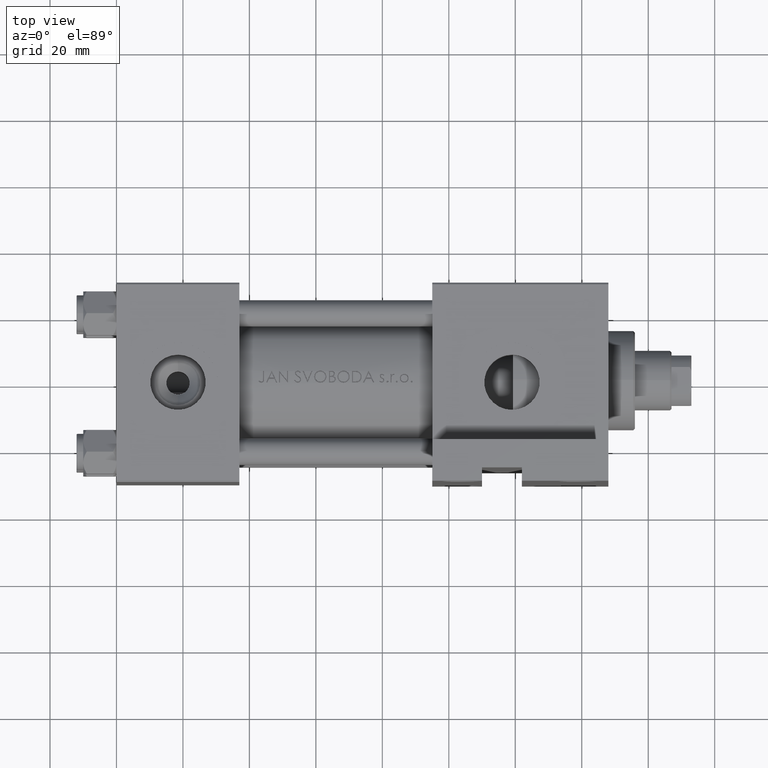
[diagram: clean part render]
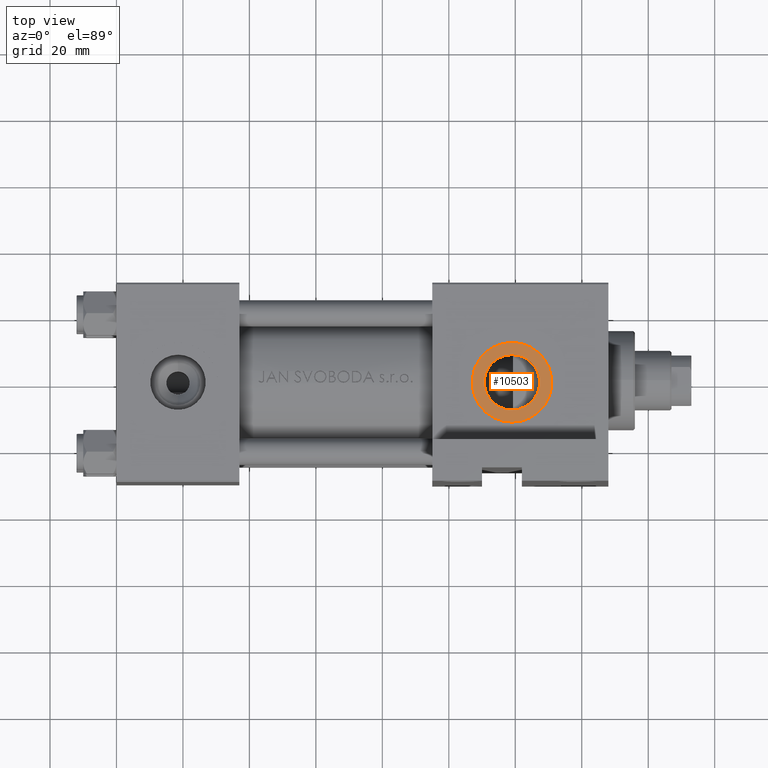
[diagram: same view with one face highlighted and labeled with its STEP entity id]
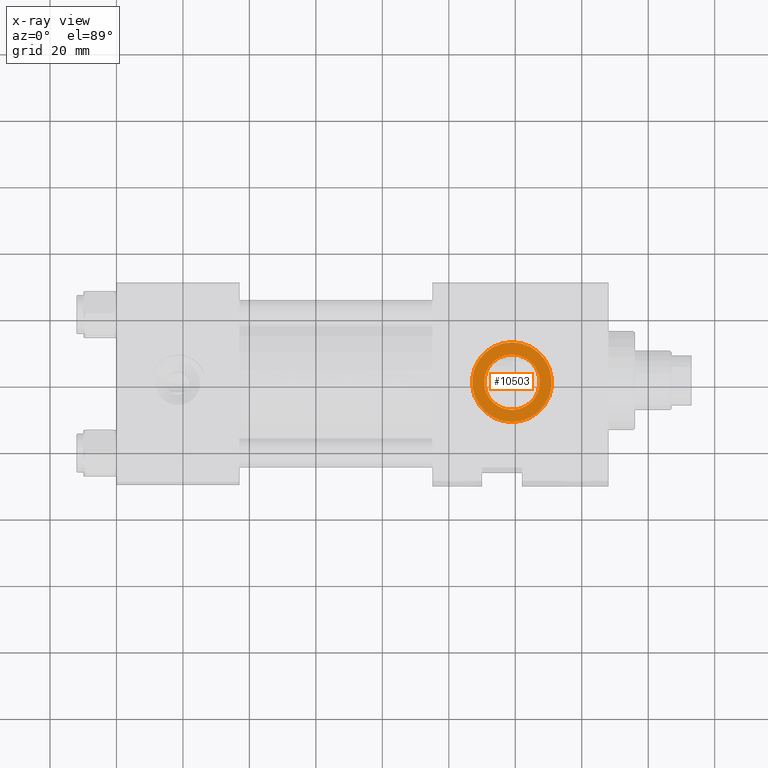
[diagram: x-ray of the same camera — body ghosted, the highlighted face saturated]
A machine part, top view. The second image highlights one B-rep face of the part: STEP entity #10503.
The next image is the same camera in x-ray: the body ghosted, the highlighted face saturated — about 0% of this face is hidden behind the body in this view.
In plain terms, the highlighted planar face has unit normal (0, -0, 1).
Its self-contained STEP definition (entity closure, byte-faithful):
#1654 = AXIS2_PLACEMENT_3D ( 'NONE', #33670, #7790, #11498 ) ;
#2620 = AXIS2_PLACEMENT_3D ( 'NONE', #33153, #29204, #10725 ) ;
#3049 = EDGE_CURVE ( 'NONE', #18792, #26349, #29063, .T. ) ;
#3420 = CARTESIAN_POINT ( 'NONE',  ( 119.0000000000000000, -29.80000000000000071, 8.329999999999998295 ) ) ;
#3789 = CARTESIAN_POINT ( 'NONE',  ( 119.0000000000000000, -29.80000000000000071, 12.00000000000000533 ) ) ;
#3892 = DIRECTION ( 'NONE',  ( 0.000000000000000000, -1.000000000000000000, -8.673617379884036705E-17 ) ) ;
#4385 = DIRECTION ( 'NONE',  ( 0.000000000000000000, 0.000000000000000000, -1.000000000000000000 ) ) ;
#5135 = ORIENTED_EDGE ( 'NONE', *, *, #3049, .F. ) ;
#5870 = EDGE_LOOP ( 'NONE', ( #41818, #27986 ) ) ;
#6758 = DIRECTION ( 'NONE',  ( 0.000000000000000000, -1.000000000000000000, -8.673617379884036705E-17 ) ) ;
#7503 = AXIS2_PLACEMENT_3D ( 'NONE', #15251, #7838, #4385 ) ;
#7790 = DIRECTION ( 'NONE',  ( 0.000000000000000000, -1.000000000000000000, -8.673617379884036705E-17 ) ) ;
#7838 = DIRECTION ( 'NONE',  ( 0.000000000000000000, -1.000000000000000000, -8.673617379884036705E-17 ) ) ;
#8922 = CARTESIAN_POINT ( 'NONE',  ( 119.0000000000000000, -29.80000000000000071, -12.00000000000000533 ) ) ;
#8964 = CARTESIAN_POINT ( 'NONE',  ( 119.0000000000000000, -29.80000000000000071, -8.329999999999998295 ) ) ;
#10503 = ADVANCED_FACE ( 'NONE', ( #14160, #10925 ), #29167, .T. ) ;
#10644 = VERTEX_POINT ( 'NONE', #8922 ) ;
#10725 = DIRECTION ( 'NONE',  ( 0.000000000000000000, 0.000000000000000000, -1.000000000000000000 ) ) ;
#10925 = FACE_OUTER_BOUND ( 'NONE', #5870, .T. ) ;
#11498 = DIRECTION ( 'NONE',  ( 0.000000000000000000, 0.000000000000000000, -1.000000000000000000 ) ) ;
#11716 = ORIENTED_EDGE ( 'NONE', *, *, #39176, .F. ) ;
#13234 = VERTEX_POINT ( 'NONE', #3789 ) ;
#13680 = EDGE_CURVE ( 'NONE', #13234, #10644, #40556, .T. ) ;
#14160 = FACE_BOUND ( 'NONE', #30015, .T. ) ;
#15251 = CARTESIAN_POINT ( 'NONE',  ( 119.0000000000000000, -29.80000000000000071, 1.734723475976807403E-17 ) ) ;
#16638 = CIRCLE ( 'NONE', #1654, 12.00000000000000533 ) ;
#18792 = VERTEX_POINT ( 'NONE', #8964 ) ;
#18822 = AXIS2_PLACEMENT_3D ( 'NONE', #33956, #3892, #18943 ) ;
#18943 = DIRECTION ( 'NONE',  ( 0.000000000000000000, 0.000000000000000000, -1.000000000000000000 ) ) ;
#21805 = DIRECTION ( 'NONE',  ( 0.000000000000000000, 8.673617379884036705E-17, -1.000000000000000000 ) ) ;
#26349 = VERTEX_POINT ( 'NONE', #3420 ) ;
#27986 = ORIENTED_EDGE ( 'NONE', *, *, #13680, .T. ) ;
#29063 = CIRCLE ( 'NONE', #18822, 8.329999999999998295 ) ;
#29167 = PLANE ( 'NONE',  #48429 ) ;
#29204 = DIRECTION ( 'NONE',  ( 0.000000000000000000, -1.000000000000000000, -8.673617379884036705E-17 ) ) ;
#30015 = EDGE_LOOP ( 'NONE', ( #5135, #11716 ) ) ;
#31265 = EDGE_CURVE ( 'NONE', #10644, #13234, #16638, .T. ) ;
#33153 = CARTESIAN_POINT ( 'NONE',  ( 119.0000000000000000, -29.80000000000000071, 1.734723475976808635E-17 ) ) ;
#33670 = CARTESIAN_POINT ( 'NONE',  ( 119.0000000000000000, -29.80000000000000071, 1.734723475976807403E-17 ) ) ;
#33956 = CARTESIAN_POINT ( 'NONE',  ( 119.0000000000000000, -29.80000000000000071, 1.734723475976808635E-17 ) ) ;
#39176 = EDGE_CURVE ( 'NONE', #26349, #18792, #42753, .T. ) ;
#40503 = CARTESIAN_POINT ( 'NONE',  ( 119.0000000000000000, -29.80000000000000071, 1.734723475976807403E-17 ) ) ;
#40556 = CIRCLE ( 'NONE', #7503, 12.00000000000000533 ) ;
#41818 = ORIENTED_EDGE ( 'NONE', *, *, #31265, .T. ) ;
#42753 = CIRCLE ( 'NONE', #2620, 8.329999999999998295 ) ;
#48429 = AXIS2_PLACEMENT_3D ( 'NONE', #40503, #6758, #21805 ) ;